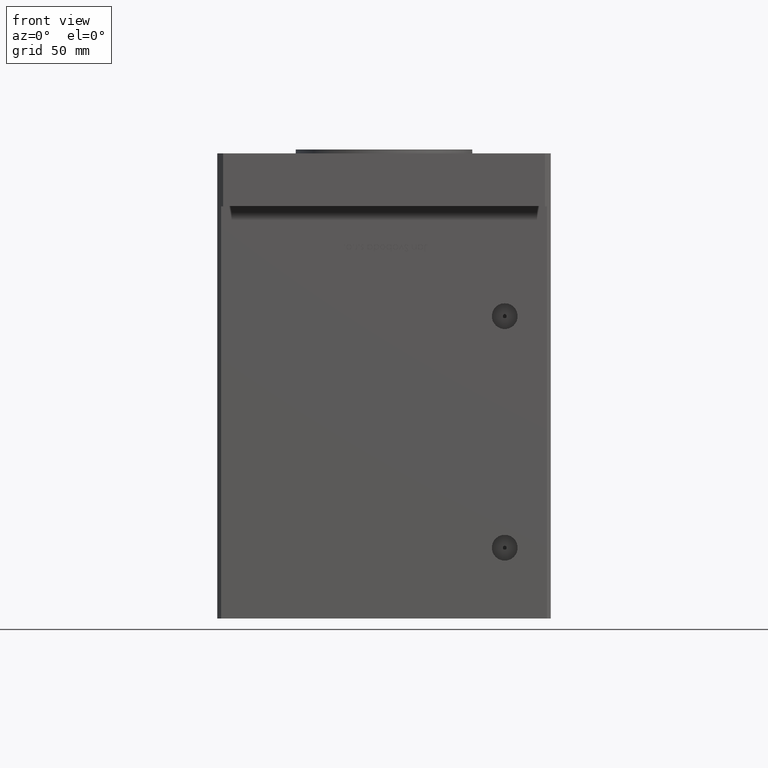
[diagram: clean part render]
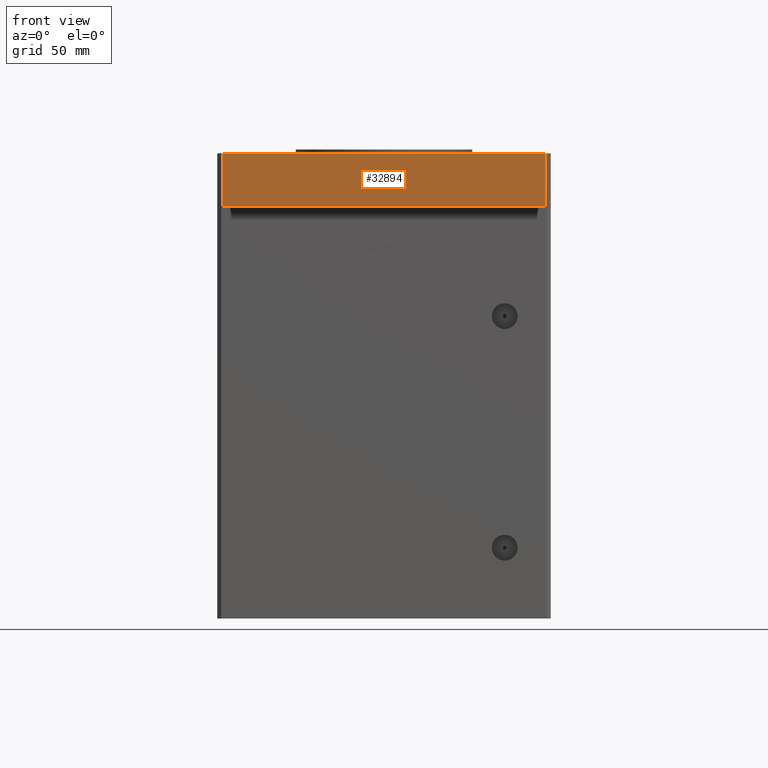
[diagram: same view with one face highlighted and labeled with its STEP entity id]
A machine part, front view. The second image highlights one B-rep face of the part: STEP entity #32894.
In plain terms, the highlighted planar face has unit normal (-0, 1, 0).
Its self-contained STEP definition (entity closure, byte-faithful):
#464 = EDGE_CURVE ( 'NONE', #19273, #29748, #39398, .T. ) ;
#794 = EDGE_CURVE ( 'NONE', #6266, #27818, #46678, .T. ) ;
#985 = EDGE_LOOP ( 'NONE', ( #10359, #19219, #17001, #42260 ) ) ;
#1390 = DIRECTION ( 'NONE',  ( -0.000000000000000000, -0.000000000000000000, -1.000000000000000000 ) ) ;
#2097 = CARTESIAN_POINT ( 'NONE',  ( -81.99999999999998579, -115.0000000000000142, 27.00000000000000000 ) ) ;
#6266 = VERTEX_POINT ( 'NONE', #44131 ) ;
#6421 = VECTOR ( 'NONE', #39334, 1000.000000000000000 ) ;
#9582 = CARTESIAN_POINT ( 'NONE',  ( -81.99999999999998579, -115.0000000000000142, 0.000000000000000000 ) ) ;
#10359 = ORIENTED_EDGE ( 'NONE', *, *, #794, .T. ) ;
#15597 = CARTESIAN_POINT ( 'NONE',  ( -81.99999999999998579, -115.0000000000000142, 27.00000000000000000 ) ) ;
#17001 = ORIENTED_EDGE ( 'NONE', *, *, #464, .F. ) ;
#17806 = DIRECTION ( 'NONE',  ( -6.769652589177782893E-16, 1.000000000000000000, 0.000000000000000000 ) ) ;
#18106 = VECTOR ( 'NONE', #1390, 1000.000000000000000 ) ;
#19219 = ORIENTED_EDGE ( 'NONE', *, *, #21418, .F. ) ;
#19273 = VERTEX_POINT ( 'NONE', #15597 ) ;
#21418 = EDGE_CURVE ( 'NONE', #29748, #27818, #29569, .T. ) ;
#21618 = PLANE ( 'NONE',  #45336 ) ;
#25225 = VECTOR ( 'NONE', #48538, 1000.000000000000000 ) ;
#26302 = CARTESIAN_POINT ( 'NONE',  ( 82.00000000000002842, -114.9999999999999147, 27.00000000000000000 ) ) ;
#27818 = VERTEX_POINT ( 'NONE', #45868 ) ;
#29569 = LINE ( 'NONE', #26302, #18106 ) ;
#29748 = VERTEX_POINT ( 'NONE', #37722 ) ;
#32894 = ADVANCED_FACE ( 'NONE', ( #51120 ), #21618, .F. ) ;
#34348 = DIRECTION ( 'NONE',  ( -1.000000000000000000, -6.769652589177782893E-16, 0.000000000000000000 ) ) ;
#34914 = VECTOR ( 'NONE', #35879, 1000.000000000000000 ) ;
#35807 = CARTESIAN_POINT ( 'NONE',  ( -81.99999999999998579, -115.0000000000000142, 27.00000000000000000 ) ) ;
#35879 = DIRECTION ( 'NONE',  ( 1.000000000000000000, 6.769652589177783879E-16, 0.000000000000000000 ) ) ;
#37722 = CARTESIAN_POINT ( 'NONE',  ( 82.00000000000002842, -114.9999999999999147, 27.00000000000000000 ) ) ;
#39334 = DIRECTION ( 'NONE',  ( 1.000000000000000000, 6.769652589177783879E-16, 0.000000000000000000 ) ) ;
#39398 = LINE ( 'NONE', #47813, #34914 ) ;
#39874 = LINE ( 'NONE', #35807, #25225 ) ;
#42260 = ORIENTED_EDGE ( 'NONE', *, *, #50240, .T. ) ;
#44131 = CARTESIAN_POINT ( 'NONE',  ( -81.99999999999998579, -115.0000000000000142, 0.000000000000000000 ) ) ;
#45336 = AXIS2_PLACEMENT_3D ( 'NONE', #2097, #17806, #34348 ) ;
#45868 = CARTESIAN_POINT ( 'NONE',  ( 82.00000000000002842, -114.9999999999999147, 0.000000000000000000 ) ) ;
#46678 = LINE ( 'NONE', #9582, #6421 ) ;
#47813 = CARTESIAN_POINT ( 'NONE',  ( -81.99999999999998579, -115.0000000000000142, 27.00000000000000000 ) ) ;
#48538 = DIRECTION ( 'NONE',  ( -0.000000000000000000, -0.000000000000000000, -1.000000000000000000 ) ) ;
#50240 = EDGE_CURVE ( 'NONE', #19273, #6266, #39874, .T. ) ;
#51120 = FACE_OUTER_BOUND ( 'NONE', #985, .T. ) ;